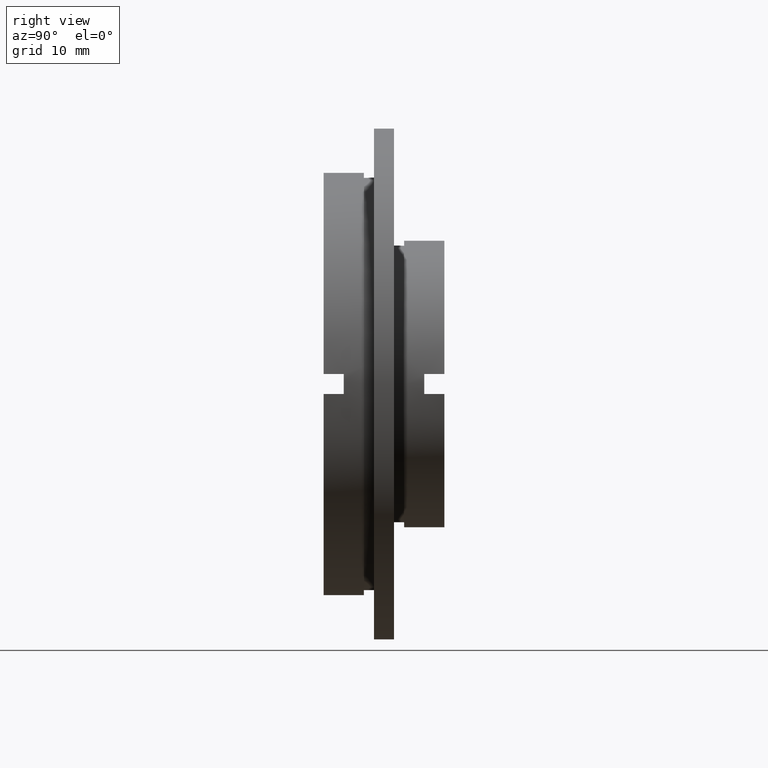
[diagram: clean part render]
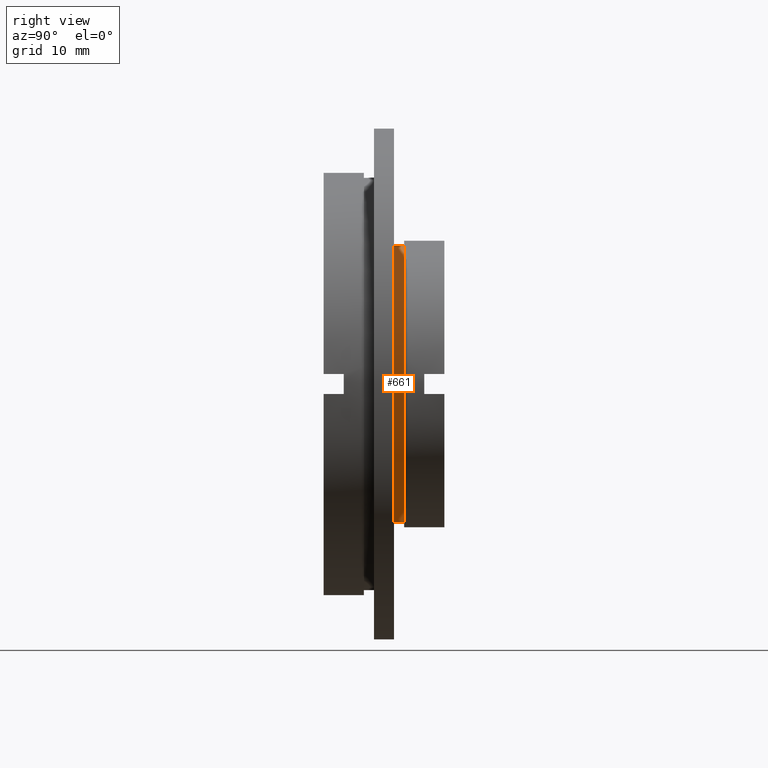
[diagram: same view with one face highlighted and labeled with its STEP entity id]
A machine part, right view. The second image highlights one B-rep face of the part: STEP entity #661.
In plain terms, the highlighted cylindrical surface (partial cylindrical patch) has radius 13.75 mm, axis along (-0, 1, -0).
Its self-contained STEP definition (entity closure, byte-faithful):
#35 = CYLINDRICAL_SURFACE ( 'NONE', #259, 13.74999999999999800 ) ;
#37 = DIRECTION ( 'NONE',  ( -0.0000000000000000000, 1.000000000000000000, -0.0000000000000000000 ) ) ;
#39 = ORIENTED_EDGE ( 'NONE', *, *, #365, .T. ) ;
#42 = CIRCLE ( 'NONE', #1004, 13.74999999999999800 ) ;
#123 = CARTESIAN_POINT ( 'NONE',  ( 0.0000000000000000000, 6.999999999999999100, 13.74999999999999800 ) ) ;
#150 = CARTESIAN_POINT ( 'NONE',  ( 1.683889348827610500E-015, 6.999999999999999100, -13.74999999999999800 ) ) ;
#181 = VECTOR ( 'NONE', #1256, 1000.000000000000000 ) ;
#209 = FACE_OUTER_BOUND ( 'NONE', #404, .T. ) ;
#221 = VERTEX_POINT ( 'NONE', #150 ) ;
#259 = AXIS2_PLACEMENT_3D ( 'NONE', #431, #529, #472 ) ;
#326 = VERTEX_POINT ( 'NONE', #713 ) ;
#347 = AXIS2_PLACEMENT_3D ( 'NONE', #980, #743, #1115 ) ;
#365 = EDGE_CURVE ( 'NONE', #221, #326, #662, .T. ) ;
#393 = CARTESIAN_POINT ( 'NONE',  ( 0.0000000000000000000, 6.999999999999999100, 0.0000000000000000000 ) ) ;
#404 = EDGE_LOOP ( 'NONE', ( #1085, #39, #624, #1319 ) ) ;
#431 = CARTESIAN_POINT ( 'NONE',  ( 0.0000000000000000000, 22.67749945107591400, 0.0000000000000000000 ) ) ;
#472 = DIRECTION ( 'NONE',  ( 0.0000000000000000000, 0.0000000000000000000, 1.000000000000000000 ) ) ;
#529 = DIRECTION ( 'NONE',  ( -0.0000000000000000000, 1.000000000000000000, -0.0000000000000000000 ) ) ;
#554 = EDGE_CURVE ( 'NONE', #1257, #326, #820, .T. ) ;
#624 = ORIENTED_EDGE ( 'NONE', *, *, #554, .F. ) ;
#650 = DIRECTION ( 'NONE',  ( 0.0000000000000000000, 0.0000000000000000000, 1.000000000000000000 ) ) ;
#661 = ADVANCED_FACE ( 'NONE', ( #209 ), #35, .T. ) ;
#662 = LINE ( 'NONE', #1119, #181 ) ;
#707 = VERTEX_POINT ( 'NONE', #123 ) ;
#713 = CARTESIAN_POINT ( 'NONE',  ( 1.683889348827610500E-015, 8.000000000000000000, -13.74999999999999800 ) ) ;
#743 = DIRECTION ( 'NONE',  ( -0.0000000000000000000, 1.000000000000000000, -0.0000000000000000000 ) ) ;
#810 = EDGE_CURVE ( 'NONE', #707, #1257, #929, .T. ) ;
#817 = CARTESIAN_POINT ( 'NONE',  ( 0.0000000000000000000, 8.000000000000000000, 13.74999999999999800 ) ) ;
#820 = CIRCLE ( 'NONE', #347, 13.74999999999999800 ) ;
#858 = VECTOR ( 'NONE', #1167, 1000.000000000000000 ) ;
#929 = LINE ( 'NONE', #1230, #858 ) ;
#980 = CARTESIAN_POINT ( 'NONE',  ( 0.0000000000000000000, 8.000000000000000000, 0.0000000000000000000 ) ) ;
#1004 = AXIS2_PLACEMENT_3D ( 'NONE', #393, #37, #650 ) ;
#1085 = ORIENTED_EDGE ( 'NONE', *, *, #1337, .T. ) ;
#1115 = DIRECTION ( 'NONE',  ( 0.0000000000000000000, 0.0000000000000000000, 1.000000000000000000 ) ) ;
#1119 = CARTESIAN_POINT ( 'NONE',  ( 1.683889348827610500E-015, 22.67749945107591400, -13.74999999999999800 ) ) ;
#1167 = DIRECTION ( 'NONE',  ( -0.0000000000000000000, 1.000000000000000000, -0.0000000000000000000 ) ) ;
#1230 = CARTESIAN_POINT ( 'NONE',  ( 0.0000000000000000000, 22.67749945107591400, 13.74999999999999800 ) ) ;
#1256 = DIRECTION ( 'NONE',  ( -0.0000000000000000000, 1.000000000000000000, -0.0000000000000000000 ) ) ;
#1257 = VERTEX_POINT ( 'NONE', #817 ) ;
#1319 = ORIENTED_EDGE ( 'NONE', *, *, #810, .F. ) ;
#1337 = EDGE_CURVE ( 'NONE', #707, #221, #42, .T. ) ;